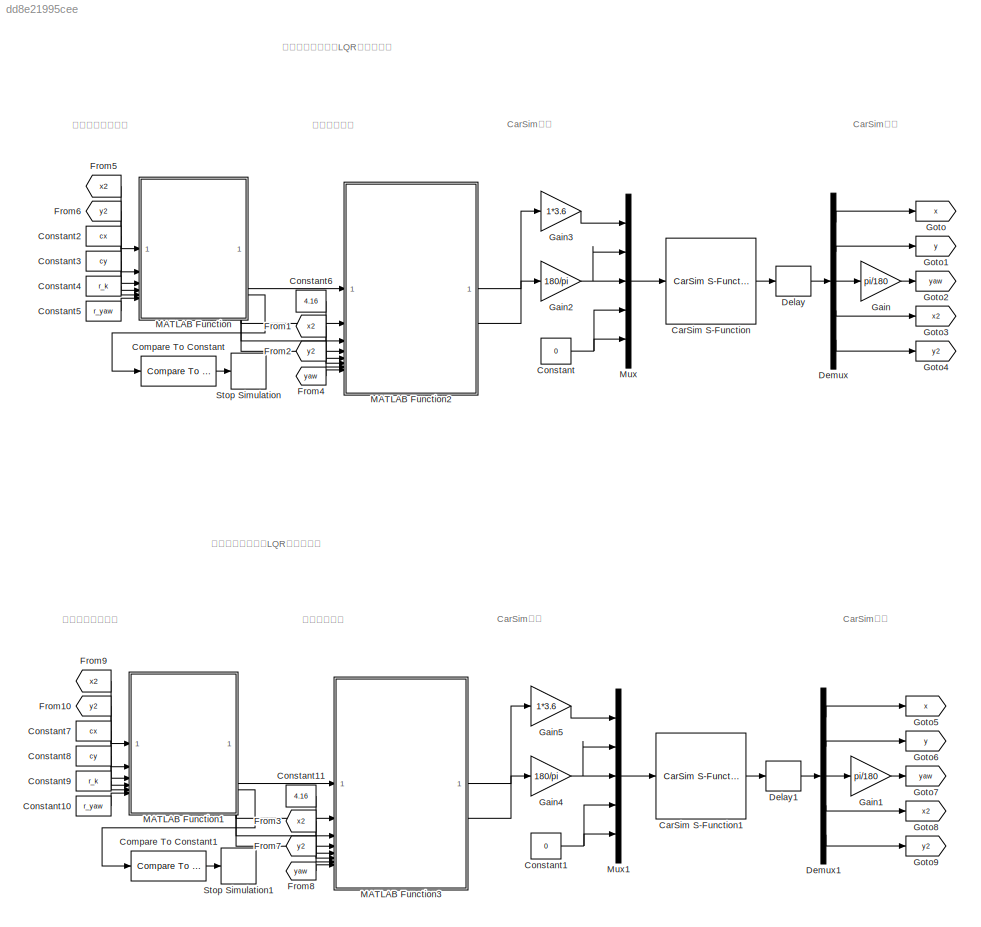
MODEL slx_dd8e21995cee
KIND model
CONFIG AbsTol = auto
CONFIG EnableMultiTasking = off
CONFIG FixedStep = auto
CONFIG MaxStep = auto
CONFIG MinStep = auto
CONFIG RelTol = 1e-3
CONFIG SampleTimeConstraint = Unconstrained
CONFIG SolverName = VariableStepAuto
CONFIG StartTime = 0.0
CONFIG StopTime = 70
BLOCK [Reference] CarSim S-Function  REF=Solver_SF/CarSim S-Function
  Commented = on
  Priority = 1
  SourceBlock = Solver_SF/CarSim S-Function
  SourceProductName = CarSim S-Function
  SourceType = Vehicle math model library
BLOCK [Reference] CarSim S-Function1  REF=Solver_SF/CarSim S-Function
  Priority = 1
  SourceBlock = Solver_SF/CarSim S-Function
  SourceProductName = CarSim S-Function
  SourceType = Vehicle math model library
BLOCK [Reference] Compare To Constant  REF=simulink/Logic and Bit
Operations/Compare
To Constant
  Commented = on
  SourceBlock = simulink/Logic and Bit\nOperations/Compare\nTo Constant
  SourceType = Compare To Constant
BLOCK [Reference] Compare To Constant1  REF=simulink/Logic and Bit
Operations/Compare
To Constant
  SourceBlock = simulink/Logic and Bit\nOperations/Compare\nTo Constant
  SourceType = Compare To Constant
BLOCK [Constant] Constant
  Commented = on
  Value = 0
BLOCK [Constant] Constant1
  Value = 0
BLOCK [Constant] Constant10
  Value = r_yaw
BLOCK [Constant] Constant11
  Value = 4.16
BLOCK [Constant] Constant2
  Commented = on
  Value = cx
BLOCK [Constant] Constant3
  Commented = on
  Value = cy
BLOCK [Constant] Constant4
  Commented = on
  Value = r_k
BLOCK [Constant] Constant5
  Commented = on
  Value = r_yaw
BLOCK [Constant] Constant6
  Commented = on
  Value = 4.16
BLOCK [Constant] Constant7
  Value = cx
BLOCK [Constant] Constant8
  Value = cy
BLOCK [Constant] Constant9
  Value = r_k
BLOCK [Delay] Delay
  Commented = on
  DelayLength = 1
  InitialCondition = 0
  InputPortMap = u0
  UseCircularBuffer = on
  UserDataPersistent = on
BLOCK [Delay] Delay1
  DelayLength = 1
  InitialCondition = 0
  InputPortMap = u0
  UseCircularBuffer = on
  UserDataPersistent = on
BLOCK [Demux] Demux
  Commented = on
  Outputs = 5
BLOCK [Demux] Demux1
  Outputs = 5
BLOCK [From] From1
  Commented = on
  GotoTag = x2
BLOCK [From] From10
  GotoTag = y2
BLOCK [From] From2
  Commented = on
  GotoTag = y2
BLOCK [From] From3
  GotoTag = x2
BLOCK [From] From4
  Commented = on
  GotoTag = yaw
BLOCK [From] From5
  Commented = on
  GotoTag = x2
BLOCK [From] From6
  Commented = on
  GotoTag = y2
BLOCK [From] From7
  GotoTag = y2
BLOCK [From] From8
  GotoTag = yaw
BLOCK [From] From9
  GotoTag = x2
BLOCK [Gain] Gain
  Commented = on
  Gain = pi/180
BLOCK [Gain] Gain1
  Gain = pi/180
BLOCK [Gain] Gain2
  Commented = on
  Gain = 180/pi
BLOCK [Gain] Gain3
  Commented = on
  Gain = 1*3.6
BLOCK [Gain] Gain4
  Gain = 180/pi
BLOCK [Gain] Gain5
  Gain = 1*3.6
BLOCK [Goto] Goto
  Commented = on
  GotoTag = x
BLOCK [Goto] Goto1
  Commented = on
  GotoTag = y
BLOCK [Goto] Goto2
  Commented = on
  GotoTag = yaw
BLOCK [Goto] Goto3
  Commented = on
  GotoTag = x2
BLOCK [Goto] Goto4
  Commented = on
  GotoTag = y2
BLOCK [Goto] Goto5
  GotoTag = x
BLOCK [Goto] Goto6
  GotoTag = y
BLOCK [Goto] Goto7
  GotoTag = yaw
BLOCK [Goto] Goto8
  GotoTag = x2
BLOCK [Goto] Goto9
  GotoTag = y2
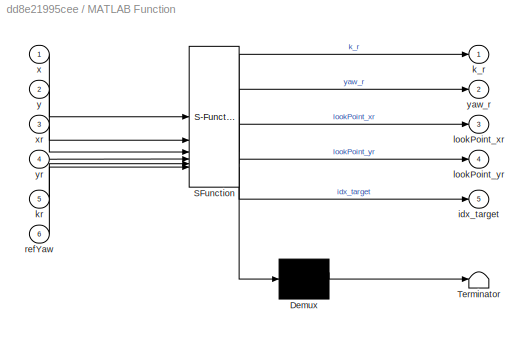
BLOCK [SubSystem] MATLAB Function
  Commented = on
  ErrorFcn = Stateflow.Translate.translate
  PermitHierarchicalResolution = ExplicitOnly
  SFBlockType = MATLAB Function
  TreatAsAtomicUnit = on
BLOCK [Demux] MATLAB Function/ Demux 
  Outputs = 1
BLOCK [S-Function] MATLAB Function/ SFunction 
  EnableBusSupport = off
  FunctionName = sf_sfun
  PortCounts = [6 6]
  SFcnIsStateOwnerBlock = off
  SFunctionDeploymentMode = off
  Tag = Stateflow S-Function 2
BLOCK [Terminator] MATLAB Function/ Terminator 
BLOCK [Outport] MATLAB Function/idx_target
  Port = 5
BLOCK [Outport] MATLAB Function/k_r
BLOCK [Inport] MATLAB Function/kr
  Port = 5
BLOCK [Outport] MATLAB Function/lookPoint_xr
  Port = 3
BLOCK [Outport] MATLAB Function/lookPoint_yr
  Port = 4
BLOCK [Inport] MATLAB Function/refYaw
  Port = 6
BLOCK [Inport] MATLAB Function/x
BLOCK [Inport] MATLAB Function/xr
  Port = 3
BLOCK [Inport] MATLAB Function/y
  Port = 2
BLOCK [Outport] MATLAB Function/yaw_r
  Port = 2
BLOCK [Inport] MATLAB Function/yr
  Port = 4
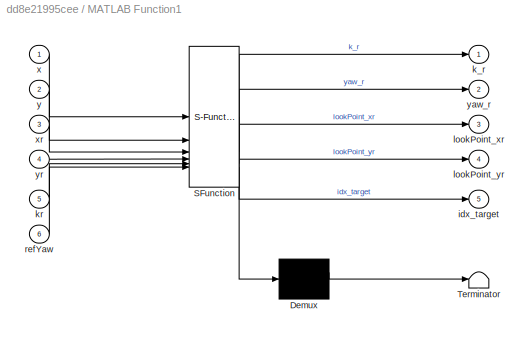
BLOCK [SubSystem] MATLAB Function1
  ErrorFcn = Stateflow.Translate.translate
  PermitHierarchicalResolution = ExplicitOnly
  SFBlockType = MATLAB Function
  TreatAsAtomicUnit = on
BLOCK [Demux] MATLAB Function1/ Demux 
  Outputs = 1
BLOCK [S-Function] MATLAB Function1/ SFunction 
  EnableBusSupport = off
  FunctionName = sf_sfun
  PortCounts = [6 6]
  SFcnIsStateOwnerBlock = off
  SFunctionDeploymentMode = off
  Tag = Stateflow S-Function 1
BLOCK [Terminator] MATLAB Function1/ Terminator 
BLOCK [Outport] MATLAB Function1/idx_target
  Port = 5
BLOCK [Outport] MATLAB Function1/k_r
BLOCK [Inport] MATLAB Function1/kr
  Port = 5
BLOCK [Outport] MATLAB Function1/lookPoint_xr
  Port = 3
BLOCK [Outport] MATLAB Function1/lookPoint_yr
  Port = 4
BLOCK [Inport] MATLAB Function1/refYaw
  Port = 6
BLOCK [Inport] MATLAB Function1/x
BLOCK [Inport] MATLAB Function1/xr
  Port = 3
BLOCK [Inport] MATLAB Function1/y
  Port = 2
BLOCK [Outport] MATLAB Function1/yaw_r
  Port = 2
BLOCK [Inport] MATLAB Function1/yr
  Port = 4
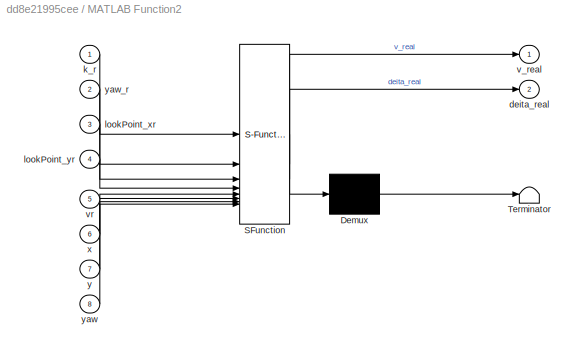
BLOCK [SubSystem] MATLAB Function2
  Commented = on
  ErrorFcn = Stateflow.Translate.translate
  PermitHierarchicalResolution = ExplicitOnly
  SFBlockType = MATLAB Function
  TreatAsAtomicUnit = on
BLOCK [Demux] MATLAB Function2/ Demux 
  Outputs = 1
BLOCK [S-Function] MATLAB Function2/ SFunction 
  EnableBusSupport = off
  FunctionName = sf_sfun
  PortCounts = [8 3]
  SFcnIsStateOwnerBlock = off
  SFunctionDeploymentMode = off
  Tag = Stateflow S-Function 3
BLOCK [Terminator] MATLAB Function2/ Terminator 
BLOCK [Outport] MATLAB Function2/deita_real
  Port = 2
BLOCK [Inport] MATLAB Function2/k_r
BLOCK [Inport] MATLAB Function2/lookPoint_xr
  Port = 3
BLOCK [Inport] MATLAB Function2/lookPoint_yr
  Port = 4
BLOCK [Outport] MATLAB Function2/v_real
BLOCK [Inport] MATLAB Function2/vr
  Port = 5
BLOCK [Inport] MATLAB Function2/x
  Port = 6
BLOCK [Inport] MATLAB Function2/y
  Port = 7
BLOCK [Inport] MATLAB Function2/yaw
  Port = 8
BLOCK [Inport] MATLAB Function2/yaw_r
  Port = 2
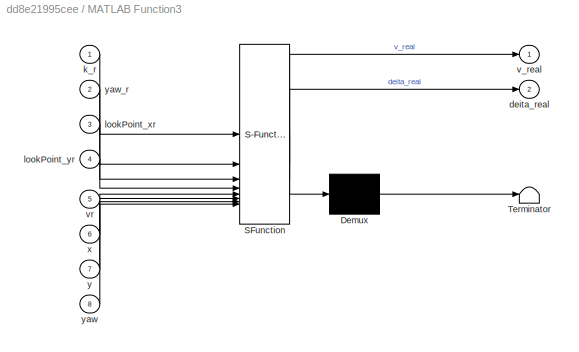
BLOCK [SubSystem] MATLAB Function3
  ErrorFcn = Stateflow.Translate.translate
  PermitHierarchicalResolution = ExplicitOnly
  SFBlockType = MATLAB Function
  TreatAsAtomicUnit = on
BLOCK [Demux] MATLAB Function3/ Demux 
  Outputs = 1
BLOCK [S-Function] MATLAB Function3/ SFunction 
  EnableBusSupport = off
  FunctionName = sf_sfun
  PortCounts = [8 3]
  SFcnIsStateOwnerBlock = off
  SFunctionDeploymentMode = off
  Tag = Stateflow S-Function 4
BLOCK [Terminator] MATLAB Function3/ Terminator 
BLOCK [Outport] MATLAB Function3/deita_real
  Port = 2
BLOCK [Inport] MATLAB Function3/k_r
BLOCK [Inport] MATLAB Function3/lookPoint_xr
  Port = 3
BLOCK [Inport] MATLAB Function3/lookPoint_yr
  Port = 4
BLOCK [Outport] MATLAB Function3/v_real
BLOCK [Inport] MATLAB Function3/vr
  Port = 5
BLOCK [Inport] MATLAB Function3/x
  Port = 6
BLOCK [Inport] MATLAB Function3/y
  Port = 7
BLOCK [Inport] MATLAB Function3/yaw
  Port = 8
BLOCK [Inport] MATLAB Function3/yaw_r
  Port = 2
BLOCK [Mux] Mux
  Commented = on
  DisplayOption = bar
  Inputs = 5
BLOCK [Mux] Mux1
  DisplayOption = bar
  Inputs = 5
BLOCK [Stop] Stop Simulation
  Commented = on
BLOCK [Stop] Stop Simulation1
ANNOTATION (root): CarSim输入
ANNOTATION (root): CarSim输出
ANNOTATION (root): 计算：参考点信息
ANNOTATION (root): 计算：控制量
ANNOTATION (root): 基于运动学的离散LQR法轨迹跟踪
ANNOTATION (root): 基于运动学的连续LQR法轨迹跟踪
LINE CarSim S-Function1:1 -> Delay1:1
LINE CarSim S-Function:1 -> Delay:1
LINE Compare To Constant1:1 -> Stop Simulation1:1
LINE Compare To Constant:1 -> Stop Simulation:1
LINE Constant10:1 -> MATLAB Function1:6
LINE Constant11:1 -> MATLAB Function3:5
NET Constant1:1 -> Mux1:4, Mux1:5
LINE Constant2:1 -> MATLAB Function:3
LINE Constant3:1 -> MATLAB Function:4
LINE Constant4:1 -> MATLAB Function:5
LINE Constant5:1 -> MATLAB Function:6
LINE Constant6:1 -> MATLAB Function2:5
LINE Constant7:1 -> MATLAB Function1:3
LINE Constant8:1 -> MATLAB Function1:4
LINE Constant9:1 -> MATLAB Function1:5
NET Constant:1 -> Mux:4, Mux:5
LINE Delay1:1 -> Demux1:1
LINE Delay:1 -> Demux:1
LINE Demux1:1 -> Goto5:1
LINE Demux1:2 -> Goto6:1
LINE Demux1:3 -> Gain1:1
LINE Demux1:4 -> Goto8:1
LINE Demux1:5 -> Goto9:1
LINE Demux:1 -> Goto:1
LINE Demux:2 -> Goto1:1
LINE Demux:3 -> Gain:1
LINE Demux:4 -> Goto3:1
LINE Demux:5 -> Goto4:1
LINE From10:1 -> MATLAB Function1:2
LINE From1:1 -> MATLAB Function2:6
LINE From2:1 -> MATLAB Function2:7
LINE From3:1 -> MATLAB Function3:6
LINE From4:1 -> MATLAB Function2:8
LINE From5:1 -> MATLAB Function:1
LINE From6:1 -> MATLAB Function:2
LINE From7:1 -> MATLAB Function3:7
LINE From8:1 -> MATLAB Function3:8
LINE From9:1 -> MATLAB Function1:1
LINE Gain1:1 -> Goto7:1
NET Gain2:1 -> Mux:2, Mux:3
LINE Gain3:1 -> Mux:1
NET Gain4:1 -> Mux1:2, Mux1:3
LINE Gain5:1 -> Mux1:1
LINE Gain:1 -> Goto2:1
LINE MATLAB Function1:1 -> MATLAB Function3:1
LINE MATLAB Function1:2 -> MATLAB Function3:2
LINE MATLAB Function1:3 -> MATLAB Function3:3
LINE MATLAB Function1:4 -> MATLAB Function3:4
LINE MATLAB Function1:5 -> Compare To Constant1:1
LINE MATLAB Function2:1 -> Gain3:1
LINE MATLAB Function2:2 -> Gain2:1
LINE MATLAB Function3:1 -> Gain5:1
LINE MATLAB Function3:2 -> Gain4:1
LINE MATLAB Function:1 -> MATLAB Function2:1
LINE MATLAB Function:2 -> MATLAB Function2:2
LINE MATLAB Function:3 -> MATLAB Function2:3
LINE MATLAB Function:4 -> MATLAB Function2:4
LINE MATLAB Function:5 -> Compare To Constant:1
LINE Mux1:1 -> CarSim S-Function1:1
LINE Mux:1 -> CarSim S-Function:1
note: NET lines group one-source signal fan-out (src -> all destinations, sorted); 1:1 wires keep LINE
CHART MATLAB Function1 states=1 transitions=1
  STATE_LABEL 'eML_blk_kernel()'
  STATE_LABEL 'SCRIPT:\n% 首先在参考轨迹上搜索离当前车辆位置最近的点索引号，由索引号取出对应的参考量\nfunction [k_r,yaw_r,lookPoint_xr, lookPoint_yr,idx_target] = findPoint(x,y, xr,yr,kr,refYaw)\n\n% 找到距离当前位置最近的一个参考轨迹点的序号\nn=length(xr);\nd_min=(x-xr(1))^2+(y-yr(1))^2;\nmin=0;\nfor i = 1:n\n    d = (x-xr(i))^2+(y-yr(i))^2; \n    if d<d_min\n        d_min=d;\n        min=i;\n    end\nend\n\n% matlab 数组索引号从1开始，这里仿真matlab报错\nif min<=1   \n   min=1;\nend\n\n%由匹配点序号给出匹配点相关信息...<+198ch>'
CHART MATLAB Function states=1 transitions=1
  STATE_LABEL 'eML_blk_kernel()'
  STATE_LABEL 'SCRIPT:\n% 首先在参考轨迹上搜索离当前车辆位置最近的点索引号，由索引号取出对应的参考量\nfunction [k_r,yaw_r,lookPoint_xr, lookPoint_yr,idx_target] = findPoint(x,y, xr,yr,kr,refYaw)\n\n% 找到距离当前位置最近的一个参考轨迹点的序号\nn=length(xr);\nd_min=(x-xr(1))^2+(y-yr(1))^2;\nmin=0;\nfor i = 1:n\n    d = (x-xr(i))^2+(y-yr(i))^2; \n    if d<d_min\n        d_min=d;\n        min=i;\n    end\nend\n\n% matlab 数组索引号从1开始，这里仿真matlab报错\nif min<=1   \n   min=1;\nend\n\n%由匹配点序号给出匹配点相关信息...<+198ch>'
CHART MATLAB Function2 states=1 transitions=1
  STATE_LABEL 'eML_blk_kernel()'
  STATE_LABEL 'SCRIPT:\n% 首先在参考轨迹上搜索离当前车辆位置最近的点\nfunction [v_real,deita_real] = findPoint(k_r,yaw_r,lookPoint_xr, lookPoint_yr,vr,x,y,yaw)\n\nL=2.6;                           %车长\nr_Delta = atan(L*k_r);           %参考的前轮转角，有固定公式\n\nx_error  = x - lookPoint_xr;     %x方向误差\ny_error = y - lookPoint_yr;      %y方向误差\nyaw_error =  yaw - yaw_r;        %横摆角误差\ne_X=[x_error;y_error;yaw_error]; %状态方程中的状态，即 x误差,y误差,横摆角误差\n\n%% 离散状态空间方程...<+1050ch>'
CHART MATLAB Function3 states=1 transitions=1
  STATE_LABEL 'eML_blk_kernel()'
  STATE_LABEL 'SCRIPT:\nfunction [v_real,deita_real] = findPoint(k_r,yaw_r,lookPoint_xr, lookPoint_yr,vr,x,y,yaw)\n\nL=2.6;                              %车长\nr_Delta = atan(L*k_r);              %参考的前轮转角\n\nx_error  = x - lookPoint_xr;        %x方向误差\ny_error = y - lookPoint_yr;         %y方向误差\nyaw_error =  yaw - yaw_r;           %横摆角误差\ne_X=[x_error;y_error;yaw_error];    %状态方程中的状态\n\n% X=AX+Bu 由状态方程系数矩阵\nA = [0,  0,  -vr*si...<+663ch>'
CHART  states=0 transitions=0
CHART  states=0 transitions=0
CHART  states=0 transitions=0
CHART  states=0 transitions=0
